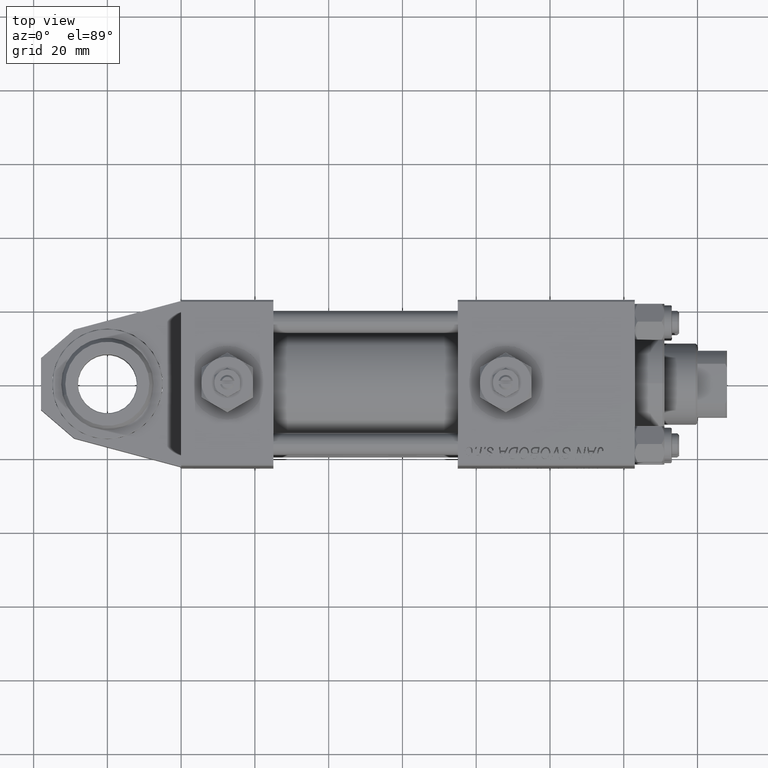
[diagram: clean part render]
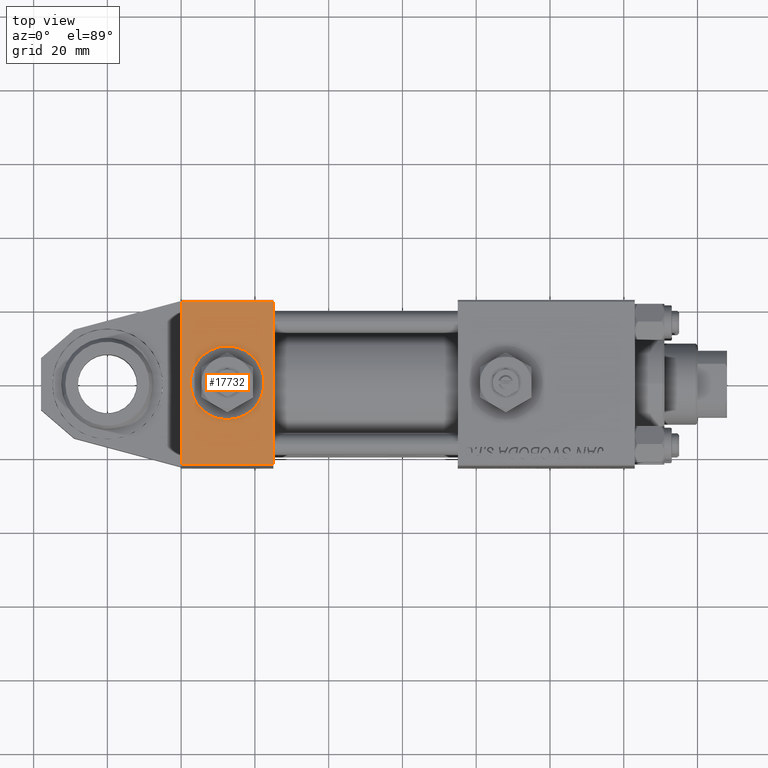
[diagram: same view with one face highlighted and labeled with its STEP entity id]
A machine part, top view. The second image highlights one B-rep face of the part: STEP entity #17732.
In plain terms, the highlighted planar face has unit normal (0, 0, 1).
Its self-contained STEP definition (entity closure, byte-faithful):
#26 = EDGE_CURVE ( 'NONE', #38114, #44011, #32683, .T. ) ;
#106 = CARTESIAN_POINT ( 'NONE',  ( 25.00000000000000000, 22.50000000000000000, 21.99999999999999645 ) ) ;
#1605 = VECTOR ( 'NONE', #18332, 1000.000000000000000 ) ;
#1686 = LINE ( 'NONE', #30454, #2219 ) ;
#2219 = VECTOR ( 'NONE', #49475, 1000.000000000000000 ) ;
#2883 = VERTEX_POINT ( 'NONE', #22834 ) ;
#4689 = ORIENTED_EDGE ( 'NONE', *, *, #31796, .F. ) ;
#6001 = FACE_OUTER_BOUND ( 'NONE', #48175, .T. ) ;
#6743 = VERTEX_POINT ( 'NONE', #48276 ) ;
#10090 = VECTOR ( 'NONE', #15441, 1000.000000000000000 ) ;
#10258 = AXIS2_PLACEMENT_3D ( 'NONE', #47168, #34224, #22881 ) ;
#10677 = LINE ( 'NONE', #26509, #41029 ) ;
#13133 = DIRECTION ( 'NONE',  ( -1.000000000000000000, 0.000000000000000000, 0.000000000000000000 ) ) ;
#13921 = ORIENTED_EDGE ( 'NONE', *, *, #32641, .T. ) ;
#15216 = PLANE ( 'NONE',  #10258 ) ;
#15441 = DIRECTION ( 'NONE',  ( 0.000000000000000000, 0.000000000000000000, -1.000000000000000000 ) ) ;
#15725 = CARTESIAN_POINT ( 'NONE',  ( 12.50000000000000178, 22.50000000000000000, -9.999999999999996447 ) ) ;
#17732 = ADVANCED_FACE ( 'NONE', ( #46908, #6001 ), #15216, .T. ) ;
#17764 = AXIS2_PLACEMENT_3D ( 'NONE', #21306, #33690, #37152 ) ;
#18332 = DIRECTION ( 'NONE',  ( 1.000000000000000000, 0.000000000000000000, 0.000000000000000000 ) ) ;
#18701 = CARTESIAN_POINT ( 'NONE',  ( 12.50000000000000000, 22.50000000000000000, 0.000000000000000000 ) ) ;
#21306 = CARTESIAN_POINT ( 'NONE',  ( 12.50000000000000000, 22.50000000000000000, 0.000000000000000000 ) ) ;
#22834 = CARTESIAN_POINT ( 'NONE',  ( 25.00000000000000000, 22.50000000000000000, -21.99999999999996803 ) ) ;
#22881 = DIRECTION ( 'NONE',  ( 0.000000000000000000, -0.000000000000000000, 1.000000000000000000 ) ) ;
#24010 = ORIENTED_EDGE ( 'NONE', *, *, #39053, .T. ) ;
#25398 = CIRCLE ( 'NONE', #17764, 9.999999999999996447 ) ;
#26509 = CARTESIAN_POINT ( 'NONE',  ( 25.00000000000000000, 22.50000000000000000, -21.99999999999998224 ) ) ;
#26530 = LINE ( 'NONE', #41590, #1605 ) ;
#26882 = DIRECTION ( 'NONE',  ( 0.000000000000000000, 0.000000000000000000, 1.000000000000000000 ) ) ;
#27472 = VERTEX_POINT ( 'NONE', #39939 ) ;
#30454 = CARTESIAN_POINT ( 'NONE',  ( 0.000000000000000000, 22.50000000000000000, 22.50000000000000355 ) ) ;
#31100 = DIRECTION ( 'NONE',  ( 0.000000000000000000, 1.000000000000000000, 0.000000000000000000 ) ) ;
#31796 = EDGE_CURVE ( 'NONE', #27472, #6743, #1686, .T. ) ;
#32641 = EDGE_CURVE ( 'NONE', #2883, #6743, #10677, .T. ) ;
#32683 = CIRCLE ( 'NONE', #46065, 9.999999999999996447 ) ;
#33690 = DIRECTION ( 'NONE',  ( 0.000000000000000000, 1.000000000000000000, 0.000000000000000000 ) ) ;
#34224 = DIRECTION ( 'NONE',  ( -0.000000000000000000, 1.000000000000000000, 0.000000000000000000 ) ) ;
#35755 = LINE ( 'NONE', #43430, #10090 ) ;
#36047 = VERTEX_POINT ( 'NONE', #106 ) ;
#37142 = ORIENTED_EDGE ( 'NONE', *, *, #40281, .T. ) ;
#37152 = DIRECTION ( 'NONE',  ( 0.000000000000000000, 0.000000000000000000, 1.000000000000000000 ) ) ;
#38042 = ORIENTED_EDGE ( 'NONE', *, *, #47690, .F. ) ;
#38114 = VERTEX_POINT ( 'NONE', #15725 ) ;
#38686 = CARTESIAN_POINT ( 'NONE',  ( 12.50000000000000000, 22.50000000000000000, 9.999999999999996447 ) ) ;
#39053 = EDGE_CURVE ( 'NONE', #27472, #36047, #26530, .T. ) ;
#39212 = ORIENTED_EDGE ( 'NONE', *, *, #26, .F. ) ;
#39939 = CARTESIAN_POINT ( 'NONE',  ( 0.000000000000000000, 22.50000000000000000, 21.99999999999999645 ) ) ;
#40281 = EDGE_CURVE ( 'NONE', #36047, #2883, #35755, .T. ) ;
#41029 = VECTOR ( 'NONE', #13133, 1000.000000000000000 ) ;
#41590 = CARTESIAN_POINT ( 'NONE',  ( 25.00000000000000000, 22.50000000000000000, 21.99999999999999645 ) ) ;
#43430 = CARTESIAN_POINT ( 'NONE',  ( 25.00000000000000000, 22.50000000000000000, 22.50000000000000355 ) ) ;
#44011 = VERTEX_POINT ( 'NONE', #38686 ) ;
#46065 = AXIS2_PLACEMENT_3D ( 'NONE', #18701, #31100, #26882 ) ;
#46908 = FACE_BOUND ( 'NONE', #52173, .T. ) ;
#47168 = CARTESIAN_POINT ( 'NONE',  ( 25.00000000000000000, 22.50000000000000000, 22.50000000000000355 ) ) ;
#47690 = EDGE_CURVE ( 'NONE', #44011, #38114, #25398, .T. ) ;
#48175 = EDGE_LOOP ( 'NONE', ( #37142, #13921, #4689, #24010 ) ) ;
#48276 = CARTESIAN_POINT ( 'NONE',  ( 0.000000000000000000, 22.50000000000000000, -21.99999999999996803 ) ) ;
#49475 = DIRECTION ( 'NONE',  ( 0.000000000000000000, 0.000000000000000000, -1.000000000000000000 ) ) ;
#52173 = EDGE_LOOP ( 'NONE', ( #38042, #39212 ) ) ;